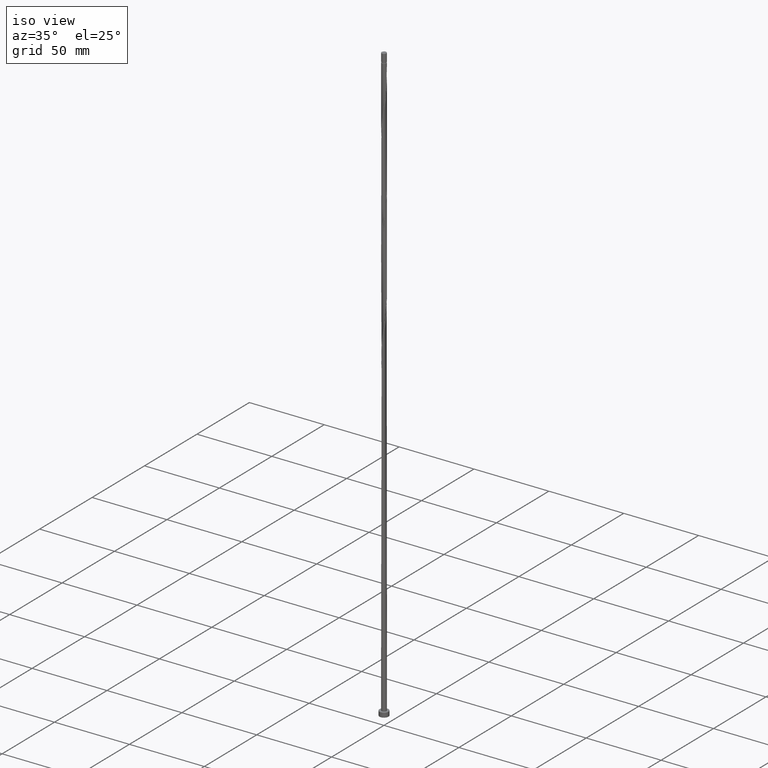
[diagram: clean part render]
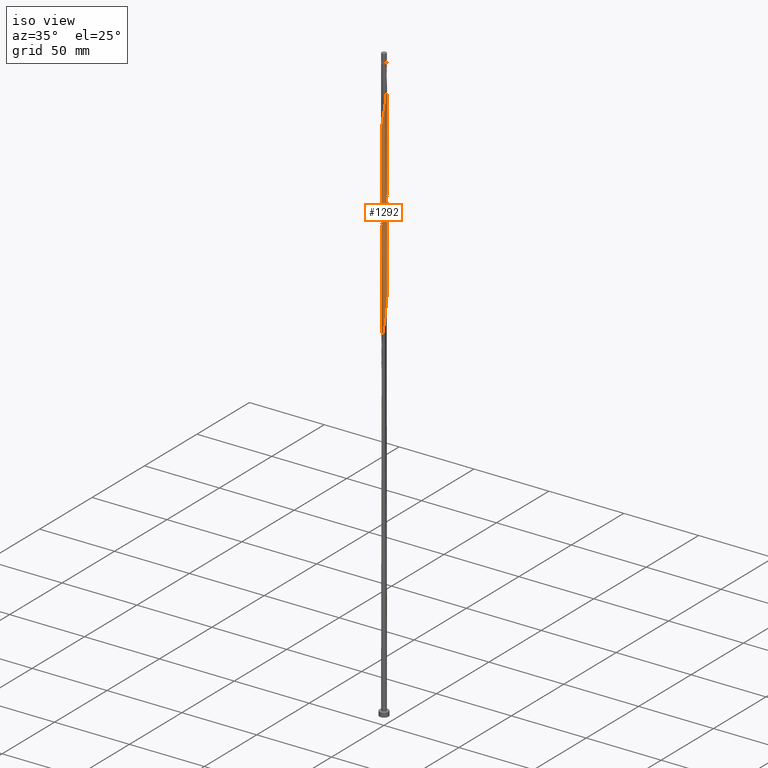
[diagram: same view with one face highlighted and labeled with its STEP entity id]
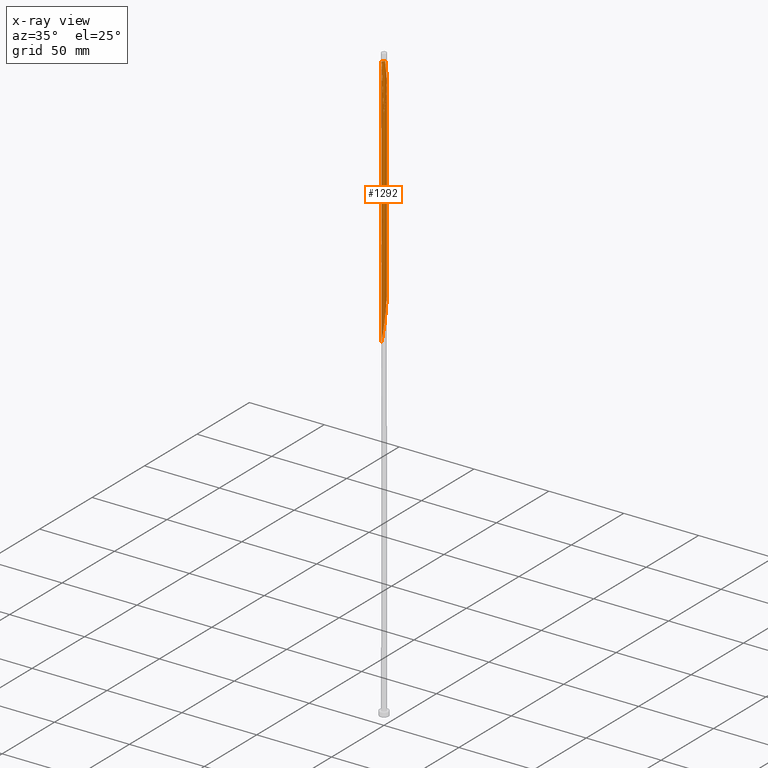
[diagram: x-ray of the same camera — body ghosted, the highlighted face saturated]
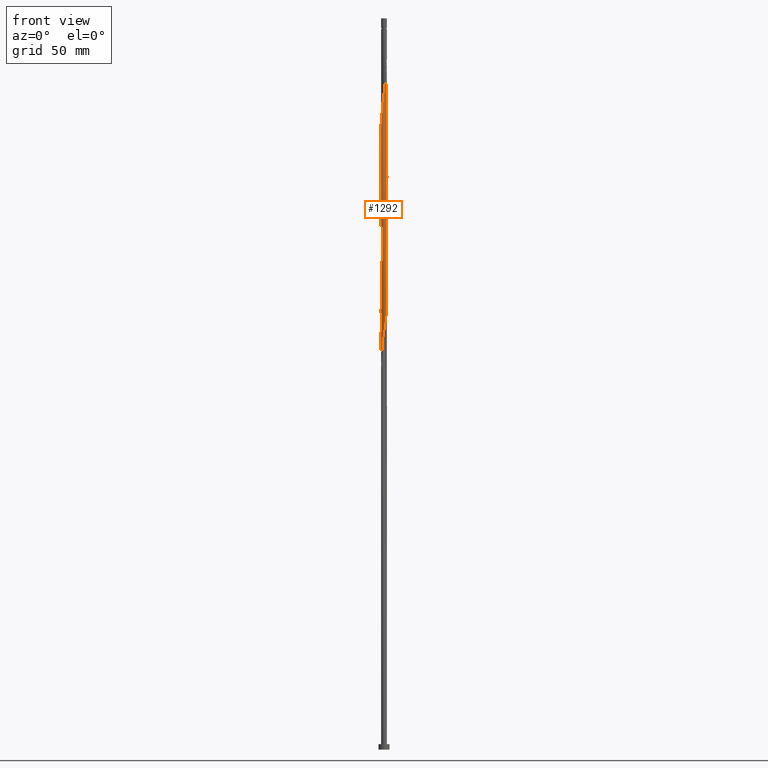
[diagram: same view with one face highlighted and labeled with its STEP entity id]
A machine part, iso view. The second image highlights one B-rep face of the part: STEP entity #1292.
The next image is the same camera in x-ray: the body ghosted, the highlighted face saturated — about 0% of this face is hidden behind the body in this view.
A second angle (front view) of the same face is appended — the face is thin or edge-on in the first view.
In plain terms, the highlighted cylindrical surface (bore or boss wall) has radius 1.6 mm, axis along (-0, -0, -1).
Its self-contained STEP definition (entity closure, byte-faithful):
#9 = CARTESIAN_POINT ( 'NONE',  ( 1.378299581423950038, -0.8125824658744331686, 369.6670008819284021 ) ) ;
#11 = CARTESIAN_POINT ( 'NONE',  ( 0.4831994207707037137, 1.534535234023662875, 326.3336675485949172 ) ) ;
#13 = LINE ( 'NONE', #1012, #674 ) ;
#22 = CARTESIAN_POINT ( 'NONE',  ( 1.310112901112434836, -0.9337474235744703810, 306.3336675485949172 ) ) ;
#32 = CARTESIAN_POINT ( 'NONE',  ( 0.3183959798741222147, 1.567999999999998950, 327.4447786597060031 ) ) ;
#42 = CARTESIAN_POINT ( 'NONE',  ( 1.475620796545628721, -0.6409550136282941013, 241.8892231041505454 ) ) ;
#52 = CARTESIAN_POINT ( 'NONE',  ( 1.608746566492991636, 0.01464750798642745419, 246.3336675485949172 ) ) ;
#63 = CARTESIAN_POINT ( 'NONE',  ( 1.592691774424292106, -0.1527511429783705577, 245.2225564374838314 ) ) ;
#73 = CARTESIAN_POINT ( 'NONE',  ( -1.517125823071059587, -0.5082609929661706660, 216.3336675485949172 ) ) ;
#90 = CARTESIAN_POINT ( 'NONE',  ( 1.600000000000000089, 1.959434878635765230E-16, 394.1114453263727455 ) ) ;
#127 = CARTESIAN_POINT ( 'NONE',  ( -1.475620796545632274, -0.6409550136282941013, 346.3336675485949741 ) ) ;
#128 = CARTESIAN_POINT ( 'NONE',  ( -1.599999999999999867, -9.193275483708475536E-16, 346.2368885698942904 ) ) ;
#134 = CARTESIAN_POINT ( 'NONE',  ( -1.310112901112438832, -0.9337474235744711581, 348.5558897708171457 ) ) ;
#137 = CARTESIAN_POINT ( 'NONE',  ( 1.198729843196937539, -1.059739007033828395, 305.2225564374838314 ) ) ;
#147 = CARTESIAN_POINT ( 'NONE',  ( -1.310112901112435280, 0.9337474235744698259, 339.6670008819282884 ) ) ;
#154 = CARTESIAN_POINT ( 'NONE',  ( 0.6374437949994082864, -1.467537191425403842, 363.0003342152617734 ) ) ;
#157 = CARTESIAN_POINT ( 'NONE',  ( 0.1535925389775412708, 1.601464765976333915, 328.5558897708171457 ) ) ;
#160 = DIRECTION ( 'NONE',  ( -0.000000000000000000, -0.000000000000000000, -1.000000000000000000 ) ) ;
#162 = EDGE_CURVE ( 'NONE', #1643, #840, #1640, .T. ) ;
#166 = VERTEX_POINT ( 'NONE', #658 ) ;
#169 = CARTESIAN_POINT ( 'NONE',  ( -0.1827270737877114692, 1.598402602975290243, 330.7781119930392038 ) ) ;
#177 = CARTESIAN_POINT ( 'NONE',  ( -0.9286322574885236270, -1.302935965560766185, 289.6670008819281747 ) ) ;
#187 = CARTESIAN_POINT ( 'NONE',  ( -1.179235034253425685, -1.081390185820696459, 220.7781119930394027 ) ) ;
#196 = CARTESIAN_POINT ( 'NONE',  ( 0.3183959798741222147, 1.567999999999998950, 260.7781119930394311 ) ) ;
#206 = CARTESIAN_POINT ( 'NONE',  ( 1.463705440089976939, 0.6677173424018644221, 250.7781119930394027 ) ) ;
#208 = CARTESIAN_POINT ( 'NONE',  ( -0.3183959798741622937, 1.568000000000405514, 394.1114453263726318 ) ) ;
#211 = CARTESIAN_POINT ( 'NONE',  ( 1.526128889450614867, 0.4805524037857308861, 378.5558897708173163 ) ) ;
#218 = CARTESIAN_POINT ( 'NONE',  ( -1.292893722757917585, -0.9574475893469962529, 219.6670008819282884 ) ) ;
#222 = CARTESIAN_POINT ( 'NONE',  ( 1.592691774424296103, 0.1527511429783686425, 376.3336675485949741 ) ) ;
#227 = CARTESIAN_POINT ( 'NONE',  ( -0.7916881692281132477, -1.400539148827136815, 224.1114453263726887 ) ) ;
#239 = CARTESIAN_POINT ( 'NONE',  ( 0.01456726740508623892, 1.599933684475816076, 391.8892231041505738 ) ) ;
#272 = CARTESIAN_POINT ( 'NONE',  ( -1.592691774424292106, 0.1527511429783700303, 345.2225564374838882 ) ) ;
#278 = CARTESIAN_POINT ( 'NONE',  ( 0.3183959798741220482, -1.568000000000002725, 360.7781119930395448 ) ) ;
#283 = CARTESIAN_POINT ( 'NONE',  ( 1.576636982355592576, -0.3201497939431685036, 310.7781119930393743 ) ) ;
#291 = CARTESIAN_POINT ( 'NONE',  ( 0.7916881692281142469, -1.400539148827139924, 364.1114453263727455 ) ) ;
#295 = CARTESIAN_POINT ( 'NONE',  ( -1.589646386272567158, -0.1817260757584528708, 280.7781119930393743 ) ) ;
#297 = ORIENTED_EDGE ( 'NONE', *, *, #458, .F. ) ;
#303 = ORIENTED_EDGE ( 'NONE', *, *, #1572, .T. ) ;
#317 = CARTESIAN_POINT ( 'NONE',  ( -0.4831994207707028810, -1.534535234023663319, 293.0003342152616597 ) ) ;
#325 = CARTESIAN_POINT ( 'NONE',  ( 0.3468938551971845197, -1.561942589606427623, 298.5558897708171457 ) ) ;
#333 = CARTESIAN_POINT ( 'NONE',  ( 0.6640595169357688121, -1.455687108539136521, 234.1114453263727455 ) ) ;
#335 =( BOUNDED_CURVE ( )  B_SPLINE_CURVE ( 2, ( #571, #1720, #1457, #992, #868, #127, #1446, #134, #730, #1892, #1154, #1143, #1740, #1592, #588, #1290, #852, #713, #278, #1320, #154, #291, #1163, #446, #1017, #1600, #9, #597, #1173, #501, #1539, #379, #222, #803, #211, #920, #1362, #1671, #1681, #357, #1794, #792, #643, #1087, #1372, #1514, #239, #1804, #1382 ),
 .UNSPECIFIED., .F., .T. ) 
 B_SPLINE_CURVE_WITH_KNOTS ( ( 3, 2, 2, 2, 2, 2, 2, 2, 2, 2, 2, 2, 2, 2, 2, 2, 2, 2, 2, 2, 2, 2, 2, 2, 3 ),
 ( 0.5545286012773116280, 0.5583333333333333481, 0.5666666666666666519, 0.5749999999999999556, 0.5833333333333332593, 0.5916666666666666741, 0.5999999999999999778, 0.6083333333333333925, 0.6166666666666666963, 0.6250000000000000000, 0.6333333333333333037, 0.6416666666666666075, 0.6500000000000001332, 0.6583333333333334370, 0.6666666666666667407, 0.6750000000000001554, 0.6833333333333333481, 0.6916666666666667629, 0.7000000000000000666, 0.7083333333333333703, 0.7166666666666667851, 0.7250000000000000888, 0.7333333333333335036, 0.7416666666666668073, 0.7500000000000001110 ),
 .UNSPECIFIED. ) 
 CURVE ( )  GEOMETRIC_REPRESENTATION_ITEM ( )  RATIONAL_B_SPLINE_CURVE ( ( 0.9066196499552956478, 0.9068171577857084831, 0.9090909090910074264, 0.9041108139712554781, 0.9090909090910074264, 0.9041108139712554781, 0.9090909090910074264, 0.9041108139712554781, 0.9090909090910074264, 0.9041108139712554781, 0.9090909090910074264, 0.9041108139712554781, 0.9090909090910074264, 0.9041108139712554781, 0.9090909090910074264, 0.9041108139712554781, 0.9090909090910074264, 0.9041108139712554781, 0.9090909090910074264, 0.9041108139712554781, 0.9090909090910074264, 0.9041108139712554781, 0.9090909090910074264, 0.9041108139712554781, 0.9090909090910074264, 0.9041108139712554781, 0.9090909090910074264, 0.9041108139712554781, 0.9090909090910074264, 0.9041108139712554781, 0.9090909090910074264, 0.9041108139712554781, 0.9090909090910074264, 0.9041108139712554781, 0.9090909090910074264, 0.9041108139712554781, 0.9090909090910074264, 0.9041108139712554781, 0.9090909090910074264, 0.9041108139712554781, 0.9090909090910074264, 0.9041108139712554781, 0.9090909090910074264, 0.9041108139712554781, 0.9090909090910074264, 0.9041108139712554781, 0.9090909090910074264, 0.9041108139712553671, 0.9090909090910075374 ) ) 
 REPRESENTATION_ITEM ( '' )  );
#342 = DIRECTION ( 'NONE',  ( -0.000000000000000000, -0.000000000000000000, -1.000000000000000000 ) ) ;
#344 = CARTESIAN_POINT ( 'NONE',  ( -1.087346785281440020, 1.185730590493186298, 270.7781119930393174 ) ) ;
#353 = CARTESIAN_POINT ( 'NONE',  ( 0.01456726740508464471, -1.599933684475812079, 229.6670008819282032 ) ) ;
#357 = CARTESIAN_POINT ( 'NONE',  ( 1.087346785281443129, 1.185730590493188075, 384.1114453263728024 ) ) ;
#361 = VERTEX_POINT ( 'NONE', #90 ) ;
#363 = CARTESIAN_POINT ( 'NONE',  ( 0.7916881692281134697, 1.400539148827136371, 257.4447786597060599 ) ) ;
#379 = CARTESIAN_POINT ( 'NONE',  ( 1.608746566492995189, -0.01464750798642979607, 375.2225564374839450 ) ) ;
#413 = CARTESIAN_POINT ( 'NONE',  ( 1.600000000000000089, 1.959434878635765230E-16, 400.0000000000000000 ) ) ;
#431 = CARTESIAN_POINT ( 'NONE',  ( 1.599999999999999645, 0.09115797991429221148, 313.5091465459454980 ) ) ;
#440 = CARTESIAN_POINT ( 'NONE',  ( -1.517125823071059587, -0.5082609929661706660, 283.0003342152616597 ) ) ;
#446 = CARTESIAN_POINT ( 'NONE',  ( 1.065576345748934894, -1.205332782294399996, 366.3336675485950309 ) ) ;
#448 = CARTESIAN_POINT ( 'NONE',  ( 1.463705440089976939, 0.6677173424018644221, 317.4447786597059462 ) ) ;
#458 = EDGE_CURVE ( 'NONE', #460, #840, #335, .T. ) ;
#460 = VERTEX_POINT ( 'NONE', #1252 ) ;
#461 = CARTESIAN_POINT ( 'NONE',  ( 0.1827270737877111639, -1.598402602975290243, 297.4447786597060599 ) ) ;
#470 = CARTESIAN_POINT ( 'NONE',  ( 1.589646386272567158, 0.1817260757584528152, 314.1114453263725750 ) ) ;
#478 = CARTESIAN_POINT ( 'NONE',  ( 1.517125823071060253, 0.5082609929661697779, 249.6670008819282600 ) ) ;
#487 = CARTESIAN_POINT ( 'NONE',  ( 0.8170583972648779447, -1.385891640840708039, 235.2225564374838598 ) ) ;
#497 = CARTESIAN_POINT ( 'NONE',  ( -0.1827270737877114692, 1.598402602975290243, 264.1114453263726887 ) ) ;
#501 = CARTESIAN_POINT ( 'NONE',  ( 1.570546206052145344, -0.3488046435304795745, 373.0003342152615460 ) ) ;
#507 = CARTESIAN_POINT ( 'NONE',  ( 1.198729843196937539, -1.059739007033828395, 238.5558897708171742 ) ) ;
#516 = CARTESIAN_POINT ( 'NONE',  ( -1.599999999999999867, -0.09115797991429054614, 213.5091465459454412 ) ) ;
#564 = DIRECTION ( 'NONE',  ( -0.000000000000000000, -0.000000000000000000, -1.000000000000000000 ) ) ;
#571 = CARTESIAN_POINT ( 'NONE',  ( -1.600000000000003419, -5.306687474335745902E-16, 341.9860020828512575 ) ) ;
#582 = CARTESIAN_POINT ( 'NONE',  ( 1.292893722757918251, 0.9574475893469954757, 319.6670008819282884 ) ) ;
#588 = CARTESIAN_POINT ( 'NONE',  ( -0.3468938551971867401, -1.561942589606430731, 356.3336675485951446 ) ) ;
#590 = CARTESIAN_POINT ( 'NONE',  ( 1.179235034253425685, 1.081390185820696237, 320.7781119930393743 ) ) ;
#597 = CARTESIAN_POINT ( 'NONE',  ( 1.463705440089979382, -0.6677173424018664205, 370.7781119930394311 ) ) ;
#599 = CARTESIAN_POINT ( 'NONE',  ( 1.592691774424292106, -0.1527511429783705577, 311.8892231041505170 ) ) ;
#608 = CARTESIAN_POINT ( 'NONE',  ( -1.463705440089976939, -0.6677173424018648662, 284.1114453263726318 ) ) ;
#617 = CARTESIAN_POINT ( 'NONE',  ( 0.4831994207707037137, 1.534535234023662875, 259.6670008819282316 ) ) ;
#627 = CARTESIAN_POINT ( 'NONE',  ( 1.378299581423947817, 0.8125824658744299489, 251.8892231041504601 ) ) ;
#637 = CARTESIAN_POINT ( 'NONE',  ( -0.01456726740508501594, 1.599933684475812079, 263.0003342152616028 ) ) ;
#643 = CARTESIAN_POINT ( 'NONE',  ( 0.6640595169357708105, 1.455687108539139851, 387.4447786597061736 ) ) ;
#649 = CARTESIAN_POINT ( 'NONE',  ( 1.576636982355592576, -0.3201497939431685036, 244.1114453263726887 ) ) ;
#658 = CARTESIAN_POINT ( 'NONE',  ( -1.599999999999999867, -9.193275483708475536E-16, 346.2368885698942904 ) ) ;
#660 = CARTESIAN_POINT ( 'NONE',  ( -1.570546206052142679, -0.3488046435304771875, 215.2225564374838314 ) ) ;
#674 = VECTOR ( 'NONE', #1596, 1000.000000000000000 ) ;
#681 = EDGE_CURVE ( 'NONE', #1643, #166, #760, .T. ) ;
#713 = CARTESIAN_POINT ( 'NONE',  ( 0.1535925389775408545, -1.601464765976337690, 359.6670008819284021 ) ) ;
#723 = CARTESIAN_POINT ( 'NONE',  ( -1.378299581423947373, -0.8125824658744300599, 285.2225564374837745 ) ) ;
#730 = CARTESIAN_POINT ( 'NONE',  ( -1.198729843196940870, -1.059739007033829505, 349.6670008819284590 ) ) ;
#733 = CARTESIAN_POINT ( 'NONE',  ( -1.198729843196937539, 1.059739007033827951, 338.5558897708171457 ) ) ;
#742 = CARTESIAN_POINT ( 'NONE',  ( 0.8170583972648779447, -1.385891640840708039, 301.8892231041504601 ) ) ;
#749 = CARTESIAN_POINT ( 'NONE',  ( 1.526128889450610426, -0.4805524037857319408, 309.6670008819282316 ) ) ;
#756 = AXIS2_PLACEMENT_3D ( 'NONE', #1570, #1875, #1722 ) ;
#758 = CARTESIAN_POINT ( 'NONE',  ( -1.065576345748934006, -1.205332782294395999, 288.5558897708171457 ) ) ;
#760 = LINE ( 'NONE', #1464, #1485 ) ;
#766 = CARTESIAN_POINT ( 'NONE',  ( -0.1535925389775419647, -1.601464765976334359, 228.5558897708172026 ) ) ;
#776 = CARTESIAN_POINT ( 'NONE',  ( -1.392866848829031889, 0.7873512186013813530, 274.1114453263726318 ) ) ;
#784 = CARTESIAN_POINT ( 'NONE',  ( 0.000000000000000000, 0.000000000000000000, 394.1114453263727455 ) ) ;
#786 = CARTESIAN_POINT ( 'NONE',  ( -1.198729843196937539, 1.059739007033827951, 271.8892231041505170 ) ) ;
#791 = EDGE_CURVE ( 'NONE', #460, #1517, #13, .T. ) ;
#792 = CARTESIAN_POINT ( 'NONE',  ( 0.8170583972648814974, 1.385891640840710037, 386.3336675485949741 ) ) ;
#799 = CARTESIAN_POINT ( 'NONE',  ( -0.3468938551971852413, 1.561942589606427623, 265.2225564374838314 ) ) ;
#803 = CARTESIAN_POINT ( 'NONE',  ( 1.576636982355596128, 0.3201497939431683371, 377.4447786597062304 ) ) ;
#808 = CARTESIAN_POINT ( 'NONE',  ( -1.592691774424292106, 0.1527511429783700303, 278.5558897708172026 ) ) ;
#840 = VERTEX_POINT ( 'NONE', #208 ) ;
#852 = CARTESIAN_POINT ( 'NONE',  ( -0.01456726740508597524, -1.599933684475815632, 358.5558897708171457 ) ) ;
#861 = CARTESIAN_POINT ( 'NONE',  ( -0.3183959798741220482, -1.567999999999998950, 294.1114453263727455 ) ) ;
#868 = CARTESIAN_POINT ( 'NONE',  ( -1.526128889450614867, -0.4805524037857314412, 345.2225564374839450 ) ) ;
#871 = CARTESIAN_POINT ( 'NONE',  ( 1.392866848829031889, -0.7873512186013815750, 307.4447786597061167 ) ) ;
#882 = CARTESIAN_POINT ( 'NONE',  ( 0.5110606366066586803, -1.525482576237565446, 299.6670008819283453 ) ) ;
#889 = CARTESIAN_POINT ( 'NONE',  ( -0.8170583972648782778, 1.385891640840708261, 335.2225564374837745 ) ) ;
#898 = CARTESIAN_POINT ( 'NONE',  ( 1.087346785281439798, -1.185730590493186298, 304.1114453263726318 ) ) ;
#907 = CARTESIAN_POINT ( 'NONE',  ( 0.1827270737877111639, -1.598402602975290243, 230.7781119930393459 ) ) ;
#916 = CARTESIAN_POINT ( 'NONE',  ( -0.5110606366066592354, 1.525482576237565224, 266.3336675485949172 ) ) ;
#920 = CARTESIAN_POINT ( 'NONE',  ( 1.475620796545632718, 0.6409550136282932131, 379.6670008819283453 ) ) ;
#925 = CARTESIAN_POINT ( 'NONE',  ( -1.526128889450610426, 0.4805524037857309971, 276.3336675485949172 ) ) ;
#936 = CARTESIAN_POINT ( 'NONE',  ( -0.4831994207707028810, -1.534535234023663319, 226.3336675485949741 ) ) ;
#940 = CYLINDRICAL_SURFACE ( 'NONE', #756, 1.600000000000000089 ) ;
#948 = CARTESIAN_POINT ( 'NONE',  ( -0.9522025912731589825, 1.285811115666947169, 269.6670008819281747 ) ) ;
#985 = VERTEX_POINT ( 'NONE', #1835 ) ;
#992 = CARTESIAN_POINT ( 'NONE',  ( -1.576636982355596128, -0.3201497939431685036, 344.1114453263728024 ) ) ;
#1002 = CARTESIAN_POINT ( 'NONE',  ( 1.599999999999999645, -9.193275483708477508E-16, 312.9035552365609760 ) ) ;
#1010 = CARTESIAN_POINT ( 'NONE',  ( -1.570546206052142679, -0.3488046435304771875, 281.8892231041504601 ) ) ;
#1012 = CARTESIAN_POINT ( 'NONE',  ( -1.600000000000000089, 0.000000000000000000, 400.0000000000000000 ) ) ;
#1017 = CARTESIAN_POINT ( 'NONE',  ( 1.179235034253427683, -1.081390185820699346, 367.4447786597062304 ) ) ;
#1021 = CARTESIAN_POINT ( 'NONE',  ( -1.475620796545628721, 0.6409550136282935462, 341.8892231041504033 ) ) ;
#1030 = CARTESIAN_POINT ( 'NONE',  ( 0.01456726740508464471, -1.599933684475812079, 296.3336675485948604 ) ) ;
#1035 =( BOUNDED_CURVE ( )  B_SPLINE_CURVE ( 2, ( #1303, #1586, #599, #283, #749, #1774, #871, #22, #137, #898, #1615, #742, #1763, #882, #325, #461, #1030, #1480, #861, #317, #1439, #1624, #177, #758, #1471, #1743, #723, #608, #440, #1010, #295, #1790, #808, #1203, #925, #1227, #776, #1510, #786, #344, #948, #1810, #1387, #916, #799, #497, #637, #1500, #196, #617, #1194, #363, #1358, #1071, #1783, #1523, #627, #206, #478, #1368, #1060, #52, #63, #649, #1218, #42, #1800, #1656, #507, #1348, #1083, #487, #333, #1534, #1666, #907, #353, #766, #1050, #936, #1635, #227, #1378, #1491, #187, #218, #1646, #1237, #73, #660, #1821, #516, #1092 ),
 .UNSPECIFIED., .F., .T. ) 
 B_SPLINE_CURVE_WITH_KNOTS ( ( 3, 2, 2, 2, 2, 2, 2, 2, 2, 2, 2, 2, 2, 2, 2, 2, 2, 2, 2, 2, 2, 2, 2, 2, 2, 2, 2, 2, 2, 2, 2, 2, 2, 2, 2, 2, 2, 2, 2, 2, 2, 2, 2, 2, 2, 2, 3 ),
 ( 0.5545286012773112949, 0.5583333333333333481, 0.5666666666666666519, 0.5749999999999999556, 0.5833333333333333703, 0.5916666666666666741, 0.5999999999999999778, 0.6083333333333332815, 0.6166666666666666963, 0.6250000000000000000, 0.6333333333333333037, 0.6416666666666667185, 0.6500000000000000222, 0.6583333333333333259, 0.6666666666666666297, 0.6750000000000000444, 0.6833333333333333481, 0.6916666666666666519, 0.6999999999999999556, 0.7083333333333333703, 0.7166666666666666741, 0.7249999999999999778, 0.7333333333333332815, 0.7416666666666666963, 0.7500000000000000000, 0.7583333333333333037, 0.7666666666666667185, 0.7750000000000000222, 0.7833333333333333259, 0.7916666666666666297, 0.8000000000000000444, 0.8083333333333333481, 0.8166666666666666519, 0.8249999999999999556, 0.8333333333333333703, 0.8416666666666666741, 0.8499999999999999778, 0.8583333333333332815, 0.8666666666666666963, 0.8750000000000000000, 0.8833333333333333037, 0.8916666666666667185, 0.8999999999999999112, 0.9083333333333332149, 0.9166666666666665186, 0.9250000000000000444, 0.9295286012773114059 ),
 .UNSPECIFIED. ) 
 CURVE ( )  GEOMETRIC_REPRESENTATION_ITEM ( )  RATIONAL_B_SPLINE_CURVE ( ( 0.9066196499552885424, 0.9068171577857011556, 0.9090909090910003210, 0.9041108139712482616, 0.9090909090910003210, 0.9041108139712482616, 0.9090909090910003210, 0.9041108139712482616, 0.9090909090910003210, 0.9041108139712482616, 0.9090909090910003210, 0.9041108139712482616, 0.9090909090910003210, 0.9041108139712482616, 0.9090909090910003210, 0.9041108139712482616, 0.9090909090910003210, 0.9041108139712482616, 0.9090909090910003210, 0.9041108139712482616, 0.9090909090910003210, 0.9041108139712482616, 0.9090909090910003210, 0.9041108139712482616, 0.9090909090910003210, 0.9041108139712482616, 0.9090909090910003210, 0.9041108139712482616, 0.9090909090910003210, 0.9041108139712482616, 0.9090909090910003210, 0.9041108139712482616, 0.9090909090910003210, 0.9041108139712482616, 0.9090909090910003210, 0.9041108139712482616, 0.9090909090910003210, 0.9041108139712482616, 0.9090909090910003210, 0.9041108139712482616, 0.9090909090910003210, 0.9041108139712482616, 0.9090909090910003210, 0.9041108139712482616, 0.9090909090910003210, 0.9041108139712482616, 0.9090909090910003210, 0.9041108139712482616, 0.9090909090910003210, 0.9041108139712482616, 0.9090909090910003210, 0.9041108139712482616, 0.9090909090910003210, 0.9041108139712482616, 0.9090909090910003210, 0.9041108139712482616, 0.9090909090910003210, 0.9041108139712482616, 0.9090909090910003210, 0.9041108139712482616, 0.9090909090910003210, 0.9041108139712482616, 0.9090909090910003210, 0.9041108139712482616, 0.9090909090910003210, 0.9041108139712482616, 0.9090909090910003210, 0.9041108139712482616, 0.9090909090910003210, 0.9041108139712482616, 0.9090909090910003210, 0.9041108139712482616, 0.9090909090910003210, 0.9041108139712482616, 0.9090909090910003210, 0.9041108139712482616, 0.9090909090910003210, 0.9041108139712482616, 0.9090909090910003210, 0.9041108139712482616, 0.9090909090910003210, 0.9041108139712482616, 0.9090909090910003210, 0.9041108139712482616, 0.9090909090910003210, 0.9041108139712482616, 0.9090909090910003210, 0.9041108139712482616, 0.9090909090910003210, 0.9041108139712482616, 0.9090909090910003210, 0.9063845652765474270, 0.9066196499552885424 ) ) 
 REPRESENTATION_ITEM ( '' )  );
#1047 =( BOUNDED_CURVE ( )  B_SPLINE_CURVE ( 2, ( #128, #1578, #272, #1448, #1331, #1021, #1165, #147, #733, #1340, #1146, #889, #1313, #1604, #1731, #169, #1157, #157, #32, #11, #1594, #1895, #1460, #1322, #590, #582, #1755, #448, #1176, #1883, #470, #431, #1002 ),
 .UNSPECIFIED., .F., .T. ) 
 B_SPLINE_CURVE_WITH_KNOTS ( ( 3, 2, 2, 2, 2, 2, 2, 2, 2, 2, 2, 2, 2, 2, 2, 2, 3 ),
 ( 0.4295286012773114614, 0.4333333333333333481, 0.4416666666666666519, 0.4500000000000000111, 0.4583333333333333148, 0.4666666666666666741, 0.4749999999999999778, 0.4833333333333333370, 0.4916666666666666408, 0.5000000000000000000, 0.5083333333333333037, 0.5166666666666667185, 0.5250000000000000222, 0.5333333333333333259, 0.5416666666666666297, 0.5500000000000000444, 0.5545286012773112949 ),
 .UNSPECIFIED. ) 
 CURVE ( )  GEOMETRIC_REPRESENTATION_ITEM ( )  RATIONAL_B_SPLINE_CURVE ( ( 0.9066196499552885424, 0.9068171577857012666, 0.9090909090910003210, 0.9041108139712482616, 0.9090909090910003210, 0.9041108139712482616, 0.9090909090910003210, 0.9041108139712482616, 0.9090909090910003210, 0.9041108139712482616, 0.9090909090910003210, 0.9041108139712482616, 0.9090909090910003210, 0.9041108139712482616, 0.9090909090910003210, 0.9041108139712482616, 0.9090909090910003210, 0.9041108139712482616, 0.9090909090910003210, 0.9041108139712482616, 0.9090909090910003210, 0.9041108139712482616, 0.9090909090910003210, 0.9041108139712482616, 0.9090909090910003210, 0.9041108139712482616, 0.9090909090910003210, 0.9041108139712482616, 0.9090909090910003210, 0.9041108139712482616, 0.9090909090910003210, 0.9063845652765474270, 0.9066196499552885424 ) ) 
 REPRESENTATION_ITEM ( '' )  );
#1050 = CARTESIAN_POINT ( 'NONE',  ( -0.3183959798741220482, -1.567999999999998950, 227.4447786597061167 ) ) ;
#1060 = CARTESIAN_POINT ( 'NONE',  ( 1.589646386272567158, 0.1817260757584528152, 247.4447786597060315 ) ) ;
#1071 = CARTESIAN_POINT ( 'NONE',  ( 1.065576345748934228, 1.205332782294395999, 255.2225564374838314 ) ) ;
#1083 = CARTESIAN_POINT ( 'NONE',  ( 0.9522025912731587605, -1.285811115666947391, 236.3336675485949172 ) ) ;
#1087 = CARTESIAN_POINT ( 'NONE',  ( 0.5110606366066613448, 1.525482576237568111, 388.5558897708172026 ) ) ;
#1092 = CARTESIAN_POINT ( 'NONE',  ( -1.599999999999999645, 2.765456852822875296E-16, 212.9035552365609192 ) ) ;
#1121 = CARTESIAN_POINT ( 'NONE',  ( -1.599999999999963896, 0.000000000000000000, 394.1114453263727455 ) ) ;
#1143 = CARTESIAN_POINT ( 'NONE',  ( -0.8170583972648808313, -1.385891640840710703, 353.0003342152617165 ) ) ;
#1146 = CARTESIAN_POINT ( 'NONE',  ( -0.9522025912731589825, 1.285811115666947169, 336.3336675485949741 ) ) ;
#1154 = CARTESIAN_POINT ( 'NONE',  ( -0.9522025912731620911, -1.285811115666949167, 351.8892231041505738 ) ) ;
#1157 = CARTESIAN_POINT ( 'NONE',  ( -0.01456726740508501594, 1.599933684475812079, 329.6670008819282884 ) ) ;
#1163 = CARTESIAN_POINT ( 'NONE',  ( 0.9286322574885248482, -1.302935965560770404, 365.2225564374839450 ) ) ;
#1165 = CARTESIAN_POINT ( 'NONE',  ( -1.392866848829031889, 0.7873512186013813530, 340.7781119930393743 ) ) ;
#1173 = CARTESIAN_POINT ( 'NONE',  ( 1.517125823071063140, -0.5082609929661733306, 371.8892231041507443 ) ) ;
#1176 = CARTESIAN_POINT ( 'NONE',  ( 1.517125823071060253, 0.5082609929661697779, 316.3336675485948035 ) ) ;
#1194 = CARTESIAN_POINT ( 'NONE',  ( 0.6374437949994087305, 1.467537191425399845, 258.5558897708171457 ) ) ;
#1203 = CARTESIAN_POINT ( 'NONE',  ( -1.576636982355592576, 0.3201497939431683371, 277.4447786597059462 ) ) ;
#1218 = CARTESIAN_POINT ( 'NONE',  ( 1.526128889450610426, -0.4805524037857319408, 243.0003342152616028 ) ) ;
#1227 = CARTESIAN_POINT ( 'NONE',  ( -1.475620796545628721, 0.6409550136282935462, 275.2225564374838314 ) ) ;
#1237 = CARTESIAN_POINT ( 'NONE',  ( -1.463705440089976939, -0.6677173424018648662, 217.4447786597060599 ) ) ;
#1249 = VECTOR ( 'NONE', #564, 1000.000000000000000 ) ;
#1252 = CARTESIAN_POINT ( 'NONE',  ( -1.600000000000003419, -5.306687474335745902E-16, 341.9860020828512575 ) ) ;
#1290 = CARTESIAN_POINT ( 'NONE',  ( -0.1827270737877121909, -1.598402602975293352, 357.4447786597060599 ) ) ;
#1292 = ADVANCED_FACE ( 'NONE', ( #1669 ), #940, .T. ) ;
#1302 = ORIENTED_EDGE ( 'NONE', *, *, #791, .T. ) ;
#1303 = CARTESIAN_POINT ( 'NONE',  ( 1.599999999999999645, -9.193275483708477508E-16, 312.9035552365609760 ) ) ;
#1313 = CARTESIAN_POINT ( 'NONE',  ( -0.6640595169357688121, 1.455687108539136521, 334.1114453263727455 ) ) ;
#1320 = CARTESIAN_POINT ( 'NONE',  ( 0.4831994207707026034, -1.534535234023667538, 361.8892231041506875 ) ) ;
#1322 = CARTESIAN_POINT ( 'NONE',  ( 1.065576345748934228, 1.205332782294395999, 321.8892231041505170 ) ) ;
#1331 = CARTESIAN_POINT ( 'NONE',  ( -1.526128889450610426, 0.4805524037857309971, 343.0003342152615460 ) ) ;
#1340 = CARTESIAN_POINT ( 'NONE',  ( -1.087346785281440020, 1.185730590493186298, 337.4447786597060031 ) ) ;
#1348 = CARTESIAN_POINT ( 'NONE',  ( 1.087346785281439798, -1.185730590493186298, 237.4447786597060031 ) ) ;
#1358 = CARTESIAN_POINT ( 'NONE',  ( 0.9286322574885242931, 1.302935965560765741, 256.3336675485949172 ) ) ;
#1362 = CARTESIAN_POINT ( 'NONE',  ( 1.392866848829035664, 0.7873512186013824632, 380.7781119930394880 ) ) ;
#1368 = CARTESIAN_POINT ( 'NONE',  ( 1.570546206052142901, 0.3488046435304765769, 248.5558897708172026 ) ) ;
#1372 = CARTESIAN_POINT ( 'NONE',  ( 0.3468938551971876283, 1.561942589606430509, 389.6670008819284021 ) ) ;
#1378 = CARTESIAN_POINT ( 'NONE',  ( -0.9286322574885236270, -1.302935965560766185, 223.0003342152616028 ) ) ;
#1382 = CARTESIAN_POINT ( 'NONE',  ( -0.3183959798741622937, 1.568000000000405514, 394.1114453263726318 ) ) ;
#1387 = CARTESIAN_POINT ( 'NONE',  ( -0.6640595169357688121, 1.455687108539136521, 267.4447786597059462 ) ) ;
#1426 = ORIENTED_EDGE ( 'NONE', *, *, #1807, .F. ) ;
#1439 = CARTESIAN_POINT ( 'NONE',  ( -0.6374437949994082864, -1.467537191425400067, 291.8892231041505170 ) ) ;
#1446 = CARTESIAN_POINT ( 'NONE',  ( -1.392866848829035664, -0.7873512186013824632, 347.4447786597061167 ) ) ;
#1448 = CARTESIAN_POINT ( 'NONE',  ( -1.576636982355592576, 0.3201497939431683371, 344.1114453263727455 ) ) ;
#1457 = CARTESIAN_POINT ( 'NONE',  ( -1.592691774424295881, -0.1527511429783694474, 343.0003342152617165 ) ) ;
#1459 = ORIENTED_EDGE ( 'NONE', *, *, #162, .T. ) ;
#1460 = CARTESIAN_POINT ( 'NONE',  ( 0.9286322574885242931, 1.302935965560765741, 323.0003342152616028 ) ) ;
#1464 = CARTESIAN_POINT ( 'NONE',  ( -1.600000000000000089, 0.000000000000000000, 400.0000000000000000 ) ) ;
#1471 = CARTESIAN_POINT ( 'NONE',  ( -1.179235034253425685, -1.081390185820696459, 287.4447786597060599 ) ) ;
#1480 = CARTESIAN_POINT ( 'NONE',  ( -0.1535925389775419647, -1.601464765976334359, 295.2225564374837745 ) ) ;
#1485 = VECTOR ( 'NONE', #160, 1000.000000000000000 ) ;
#1491 = CARTESIAN_POINT ( 'NONE',  ( -1.065576345748934006, -1.205332782294395999, 221.8892231041504886 ) ) ;
#1500 = CARTESIAN_POINT ( 'NONE',  ( 0.1535925389775412708, 1.601464765976333915, 261.8892231041504601 ) ) ;
#1508 = DIRECTION ( 'NONE',  ( -1.000000000000000000, 0.000000000000000000, 0.000000000000000000 ) ) ;
#1510 = CARTESIAN_POINT ( 'NONE',  ( -1.310112901112435280, 0.9337474235744698259, 273.0003342152616028 ) ) ;
#1514 = CARTESIAN_POINT ( 'NONE',  ( 0.1827270737877125517, 1.598402602975293574, 390.7781119930395448 ) ) ;
#1517 = VERTEX_POINT ( 'NONE', #1546 ) ;
#1523 = CARTESIAN_POINT ( 'NONE',  ( 1.292893722757918251, 0.9574475893469954757, 253.0003342152616312 ) ) ;
#1534 = CARTESIAN_POINT ( 'NONE',  ( 0.5110606366066586803, -1.525482576237565446, 233.0003342152616028 ) ) ;
#1539 = CARTESIAN_POINT ( 'NONE',  ( 1.589646386272570711, -0.1817260757584538700, 374.1114453263728592 ) ) ;
#1546 = CARTESIAN_POINT ( 'NONE',  ( -1.599999999999999645, 2.765456852822875789E-16, 212.9035552365609192 ) ) ;
#1554 = LINE ( 'NONE', #413, #1249 ) ;
#1570 = CARTESIAN_POINT ( 'NONE',  ( 0.000000000000000000, 0.000000000000000000, 400.0000000000000000 ) ) ;
#1572 = EDGE_CURVE ( 'NONE', #361, #985, #1554, .T. ) ;
#1578 = CARTESIAN_POINT ( 'NONE',  ( -1.599999999999999645, 0.07655039885880259021, 345.7283400443301957 ) ) ;
#1586 = CARTESIAN_POINT ( 'NONE',  ( 1.599999999999999867, -0.07655039885879946771, 312.3950067109968813 ) ) ;
#1592 = CARTESIAN_POINT ( 'NONE',  ( -0.5110606366066611228, -1.525482576237568111, 355.2225564374839450 ) ) ;
#1594 = CARTESIAN_POINT ( 'NONE',  ( 0.6374437949994087305, 1.467537191425399845, 325.2225564374838314 ) ) ;
#1596 = DIRECTION ( 'NONE',  ( -0.000000000000000000, -0.000000000000000000, -1.000000000000000000 ) ) ;
#1600 = CARTESIAN_POINT ( 'NONE',  ( 1.292893722757919361, -0.9574475893469992505, 368.5558897708172594 ) ) ;
#1604 = CARTESIAN_POINT ( 'NONE',  ( -0.5110606366066592354, 1.525482576237565224, 333.0003342152616028 ) ) ;
#1615 = CARTESIAN_POINT ( 'NONE',  ( 0.9522025912731587605, -1.285811115666947391, 303.0003342152615460 ) ) ;
#1624 = CARTESIAN_POINT ( 'NONE',  ( -0.7916881692281132477, -1.400539148827136815, 290.7781119930392606 ) ) ;
#1632 = EDGE_LOOP ( 'NONE', ( #1771, #1459, #297, #1302, #1426, #1751, #303, #1724 ) ) ;
#1635 = CARTESIAN_POINT ( 'NONE',  ( -0.6374437949994082864, -1.467537191425400067, 225.2225564374838314 ) ) ;
#1640 = CIRCLE ( 'NONE', #1884, 1.599999999999963896 ) ;
#1643 = VERTEX_POINT ( 'NONE', #1121 ) ;
#1646 = CARTESIAN_POINT ( 'NONE',  ( -1.378299581423947373, -0.8125824658744300599, 218.5558897708171742 ) ) ;
#1656 = CARTESIAN_POINT ( 'NONE',  ( 1.310112901112434836, -0.9337474235744703810, 239.6670008819282884 ) ) ;
#1666 = CARTESIAN_POINT ( 'NONE',  ( 0.3468938551971845197, -1.561942589606427623, 231.8892231041504601 ) ) ;
#1669 = FACE_OUTER_BOUND ( 'NONE', #1632, .T. ) ;
#1671 = CARTESIAN_POINT ( 'NONE',  ( 1.310112901112439054, 0.9337474235744706030, 381.8892231041506307 ) ) ;
#1681 = CARTESIAN_POINT ( 'NONE',  ( 1.198729843196941980, 1.059739007033828839, 383.0003342152617734 ) ) ;
#1720 = CARTESIAN_POINT ( 'NONE',  ( -1.600000000000002753, -0.07655039885880469963, 342.4945506084154090 ) ) ;
#1722 = DIRECTION ( 'NONE',  ( -1.000000000000000000, 0.000000000000000000, 0.000000000000000000 ) ) ;
#1724 = ORIENTED_EDGE ( 'NONE', *, *, #1748, .F. ) ;
#1731 = CARTESIAN_POINT ( 'NONE',  ( -0.3468938551971852413, 1.561942589606427623, 331.8892231041504033 ) ) ;
#1740 = CARTESIAN_POINT ( 'NONE',  ( -0.6640595169357705885, -1.455687108539139185, 354.1114453263729160 ) ) ;
#1743 = CARTESIAN_POINT ( 'NONE',  ( -1.292893722757917585, -0.9574475893469962529, 286.3336675485949172 ) ) ;
#1748 = EDGE_CURVE ( 'NONE', #166, #985, #1047, .T. ) ;
#1751 = ORIENTED_EDGE ( 'NONE', *, *, #1572, .F. ) ;
#1755 = CARTESIAN_POINT ( 'NONE',  ( 1.378299581423947817, 0.8125824658744299489, 318.5558897708172026 ) ) ;
#1763 = CARTESIAN_POINT ( 'NONE',  ( 0.6640595169357688121, -1.455687108539136521, 300.7781119930392606 ) ) ;
#1771 = ORIENTED_EDGE ( 'NONE', *, *, #681, .F. ) ;
#1774 = CARTESIAN_POINT ( 'NONE',  ( 1.475620796545628721, -0.6409550136282941013, 308.5558897708170889 ) ) ;
#1783 = CARTESIAN_POINT ( 'NONE',  ( 1.179235034253425685, 1.081390185820696237, 254.1114453263726887 ) ) ;
#1790 = CARTESIAN_POINT ( 'NONE',  ( -1.608746566492991636, -0.01464750798642841523, 279.6670008819282884 ) ) ;
#1794 = CARTESIAN_POINT ( 'NONE',  ( 0.9522025912731624242, 1.285811115666949167, 385.2225564374840019 ) ) ;
#1800 = CARTESIAN_POINT ( 'NONE',  ( 1.392866848829031889, -0.7873512186013815750, 240.7781119930394595 ) ) ;
#1804 = CARTESIAN_POINT ( 'NONE',  ( -0.1535925389775422700, 1.601464765976338356, 393.0003342152615460 ) ) ;
#1807 = EDGE_CURVE ( 'NONE', #985, #1517, #1035, .T. ) ;
#1810 = CARTESIAN_POINT ( 'NONE',  ( -0.8170583972648782778, 1.385891640840708261, 268.5558897708172026 ) ) ;
#1821 = CARTESIAN_POINT ( 'NONE',  ( -1.589646386272567158, -0.1817260757584528708, 214.1114453263727171 ) ) ;
#1835 = CARTESIAN_POINT ( 'NONE',  ( 1.599999999999999645, -9.193275483708477508E-16, 312.9035552365609192 ) ) ;
#1875 = DIRECTION ( 'NONE',  ( -0.000000000000000000, -0.000000000000000000, -1.000000000000000000 ) ) ;
#1883 = CARTESIAN_POINT ( 'NONE',  ( 1.570546206052142901, 0.3488046435304765769, 315.2225564374837745 ) ) ;
#1884 = AXIS2_PLACEMENT_3D ( 'NONE', #784, #342, #1508 ) ;
#1892 = CARTESIAN_POINT ( 'NONE',  ( -1.087346785281442685, -1.185730590493188075, 350.7781119930396017 ) ) ;
#1895 = CARTESIAN_POINT ( 'NONE',  ( 0.7916881692281134697, 1.400539148827136371, 324.1114453263727455 ) ) ;